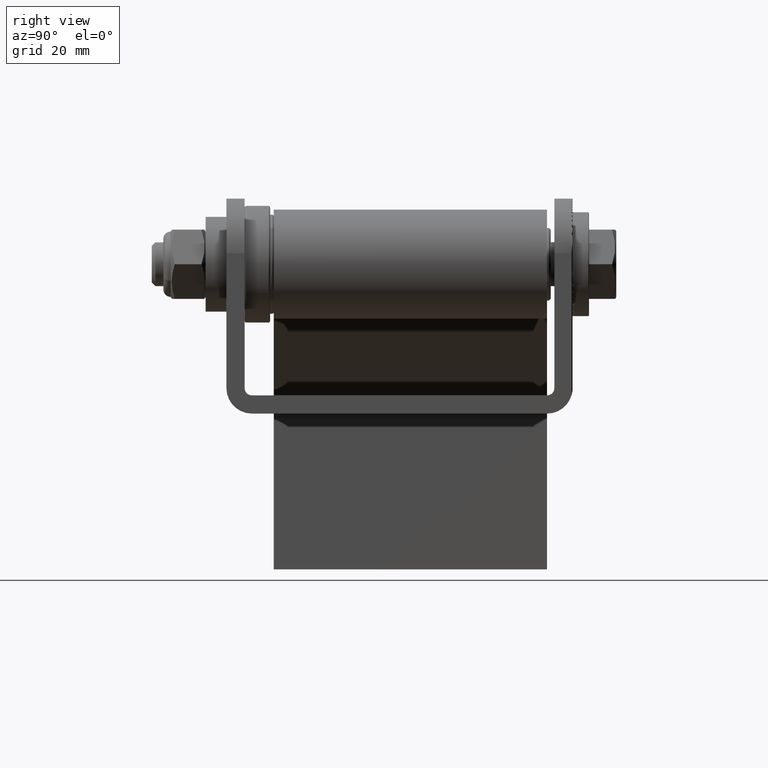
[diagram: clean part render]
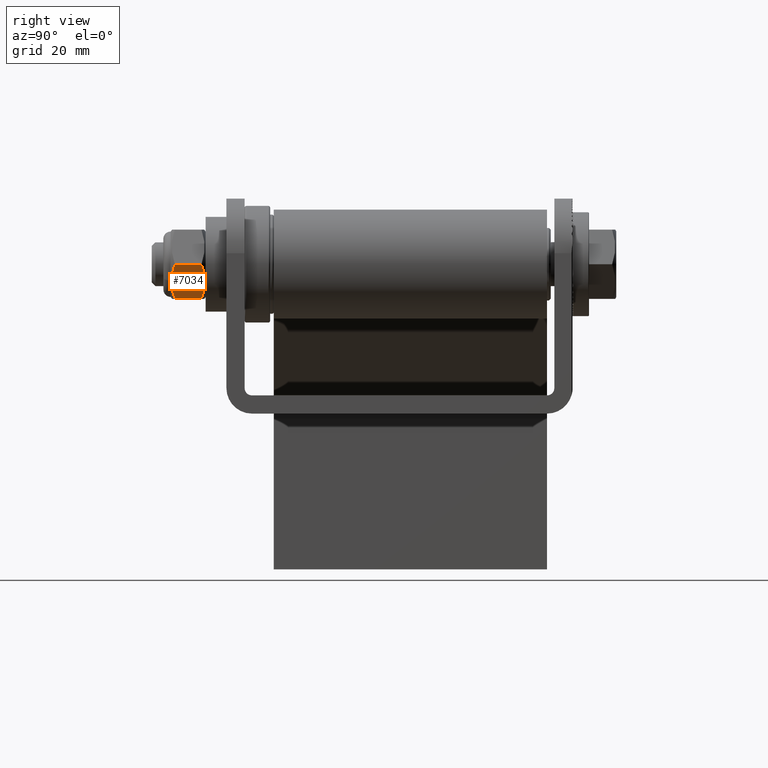
[diagram: same view with one face highlighted and labeled with its STEP entity id]
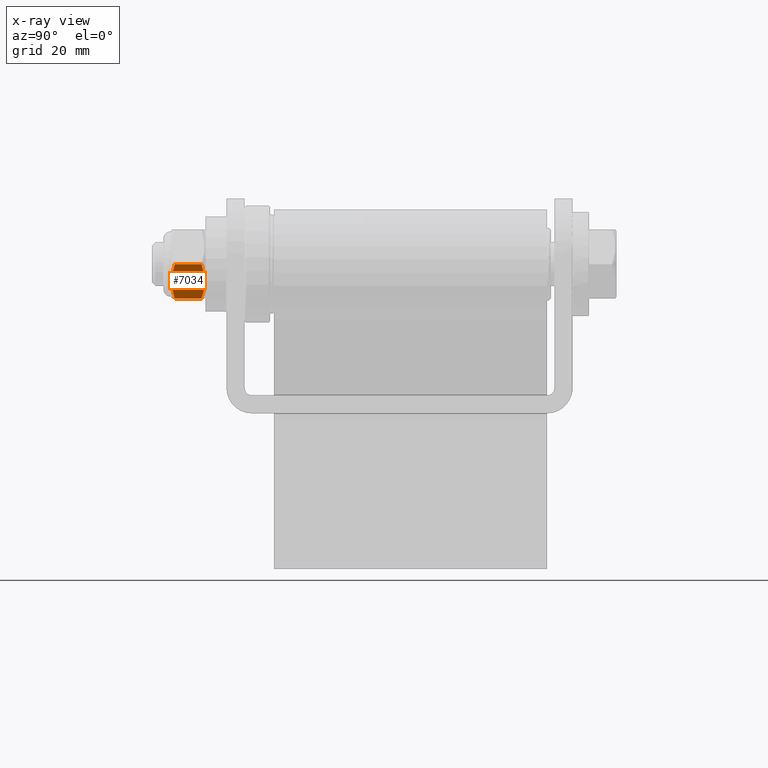
[diagram: x-ray of the same camera — body ghosted, the highlighted face saturated]
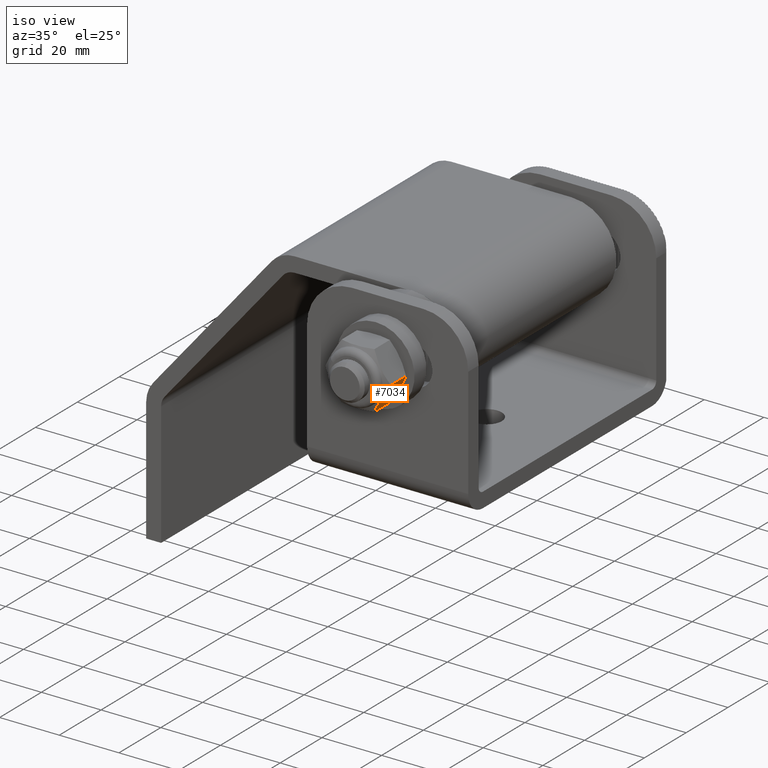
[diagram: same view with one face highlighted and labeled with its STEP entity id]
A machine part, right view. The second image highlights one B-rep face of the part: STEP entity #7034.
The next image is the same camera in x-ray: the body ghosted, the highlighted face saturated — about 0% of this face is hidden behind the body in this view.
A second angle (iso view) of the same face is appended — the face is thin or edge-on in the first view.
In plain terms, the highlighted planar face has unit normal (-0.866, -0, 0.5).
Its self-contained STEP definition (entity closure, byte-faithful):
#158 = ORIENTED_EDGE ( 'NONE', *, *, #4689, .F. ) ;
#597 = CARTESIAN_POINT ( 'NONE',  ( -5.484827557301445100, 3.662819089373314400, -9.500000000000000000 ) ) ;
#1432 = VERTEX_POINT ( 'NONE', #24609 ) ;
#1481 = VERTEX_POINT ( 'NONE', #5848 ) ;
#1554 = DIRECTION ( 'NONE',  ( 1.581383788144378200E-016, -0.0000000000000000000, 1.000000000000000000 ) ) ;
#2100 = VERTEX_POINT ( 'NONE', #6372 ) ;
#2491 = CARTESIAN_POINT ( 'NONE',  ( 0.9279667863832378200, -4.511324865405190300, -9.500000000000001800 ) ) ;
#2495 = ORIENTED_EDGE ( 'NONE', *, *, #14276, .T. ) ;
#3019 = CARTESIAN_POINT ( 'NONE',  ( -5.484827557301445100, 3.662819089373314400, -9.500000000000000000 ) ) ;
#3327 = CARTESIAN_POINT ( 'NONE',  ( -4.592258497430444600, -3.920481582866767800, -9.500000000000001800 ) ) ;
#3615 = CARTESIAN_POINT ( 'NONE',  ( 5.484827557301444200, 4.799999999999999800, -9.500000000000001800 ) ) ;
#3801 = EDGE_CURVE ( 'NONE', #22328, #24334, #20500, .T. ) ;
#4550 = CARTESIAN_POINT ( 'NONE',  ( 5.484827557301444200, 3.662819089373314400, -9.500000000000001800 ) ) ;
#4607 = ORIENTED_EDGE ( 'NONE', *, *, #7436, .T. ) ;
#4619 = FACE_OUTER_BOUND ( 'NONE', #16189, .T. ) ;
#4689 = EDGE_CURVE ( 'NONE', #22328, #1432, #22930, .T. ) ;
#5848 = CARTESIAN_POINT ( 'NONE',  ( 5.484827557301444200, 3.662819089373314400, -9.500000000000001800 ) ) ;
#6311 = CARTESIAN_POINT ( 'NONE',  ( 4.597850107038707000, 3.918867424210470900, -9.500000000000001800 ) ) ;
#6372 = CARTESIAN_POINT ( 'NONE',  ( 5.484827557301444200, -3.662819089373314400, -9.500000000000001800 ) ) ;
#6588 = CARTESIAN_POINT ( 'NONE',  ( -3.922610851211481200E-025, 4.511324865405190300, -9.500000000000001800 ) ) ;
#6985 = CARTESIAN_POINT ( 'NONE',  ( -3.922610851211481200E-025, 4.511324865405190300, -9.500000000000001800 ) ) ;
#7021 = ORIENTED_EDGE ( 'NONE', *, *, #13814, .T. ) ;
#7034 = ADVANCED_FACE ( 'NONE', ( #4619 ), #12312, .F. ) ;
#7378 = CARTESIAN_POINT ( 'NONE',  ( -1.848187441465208200, -4.431580333167910400, -9.500000000000001800 ) ) ;
#7436 = EDGE_CURVE ( 'NONE', #1481, #2100, #13469, .T. ) ;
#7720 = B_SPLINE_CURVE_WITH_KNOTS ( 'NONE', 3,
 ( #23215, #25498, #8660, #17093, #2491, #17004 ),
 .UNSPECIFIED., .F., .F.,
 ( 4, 2, 4 ),
 ( 0.02510344865626489000, 0.02788245588932965900, 0.03066146312239442800 ),
 .UNSPECIFIED. ) ;
#8660 = CARTESIAN_POINT ( 'NONE',  ( 3.699441997676888000, -4.132028731169365100, -9.500000000000001800 ) ) ;
#8689 = CARTESIAN_POINT ( 'NONE',  ( 1.868239752105089100, 4.429337394161245300, -9.500000000000001800 ) ) ;
#9766 = CARTESIAN_POINT ( 'NONE',  ( -3.678782492749258300, -4.136373375985143300, -9.500000000000000000 ) ) ;
#11039 = VERTEX_POINT ( 'NONE', #20876 ) ;
#11784 = CARTESIAN_POINT ( 'NONE',  ( -0.9273492696439452600, -4.511324865405190300, -9.500000000000001800 ) ) ;
#12157 = VECTOR ( 'NONE', #17955, 1000.000000000000000 ) ;
#12312 = PLANE ( 'NONE',  #24165 ) ;
#13393 = CARTESIAN_POINT ( 'NONE',  ( -3.678782492749258700, 4.136373375985143300, -9.500000000000001800 ) ) ;
#13469 = LINE ( 'NONE', #3615, #25255 ) ;
#13556 = CARTESIAN_POINT ( 'NONE',  ( -5.484827557301445100, 4.799999999999999800, -9.500000000000000000 ) ) ;
#13814 = EDGE_CURVE ( 'NONE', #24334, #1481, #19460, .T. ) ;
#13879 = CARTESIAN_POINT ( 'NONE',  ( -5.484827557301445100, -3.662819089373314400, -9.500000000000000000 ) ) ;
#14276 = EDGE_CURVE ( 'NONE', #2100, #11039, #7720, .T. ) ;
#14398 = DIRECTION ( 'NONE',  ( 1.000000000000000000, 0.0000000000000000000, -1.581383788144378200E-016 ) ) ;
#14562 = CARTESIAN_POINT ( 'NONE',  ( -3.922610851211481200E-025, 4.511324865405190300, -9.500000000000001800 ) ) ;
#14865 = CARTESIAN_POINT ( 'NONE',  ( -0.9273492696439453700, 4.511324865405190300, -9.500000000000001800 ) ) ;
#15891 = CARTESIAN_POINT ( 'NONE',  ( -3.922610851211481200E-025, -4.511324865405190300, -9.500000000000001800 ) ) ;
#16189 = EDGE_LOOP ( 'NONE', ( #4607, #2495, #23655, #158, #19537, #7021 ) ) ;
#16835 = B_SPLINE_CURVE_WITH_KNOTS ( 'NONE', 3,
 ( #15891, #11784, #7378, #9766, #3327, #13879 ),
 .UNSPECIFIED., .F., .F.,
 ( 4, 2, 4 ),
 ( 0.03066146312239442800, 0.03343862106137861200, 0.03621577900036279700 ),
 .UNSPECIFIED. ) ;
#17004 = CARTESIAN_POINT ( 'NONE',  ( -3.922610851211481200E-025, -4.511324865405190300, -9.500000000000001800 ) ) ;
#17093 = CARTESIAN_POINT ( 'NONE',  ( 1.868239752105089700, -4.429337394161246200, -9.500000000000000000 ) ) ;
#17606 = CARTESIAN_POINT ( 'NONE',  ( -4.592258497430444600, 3.920481582866766100, -9.499999999999998200 ) ) ;
#17955 = DIRECTION ( 'NONE',  ( -0.0000000000000000000, -1.000000000000000000, -0.0000000000000000000 ) ) ;
#19460 = B_SPLINE_CURVE_WITH_KNOTS ( 'NONE', 3,
 ( #6588, #25070, #8689, #23335, #6311, #4550 ),
 .UNSPECIFIED., .F., .F.,
 ( 4, 2, 4 ),
 ( 0.01550990649068762100, 0.01828695993828467800, 0.02106401338588173600 ),
 .UNSPECIFIED. ) ;
#19537 = ORIENTED_EDGE ( 'NONE', *, *, #3801, .T. ) ;
#20500 = B_SPLINE_CURVE_WITH_KNOTS ( 'NONE', 3,
 ( #3019, #17606, #13393, #23719, #14865, #6985 ),
 .UNSPECIFIED., .F., .F.,
 ( 4, 2, 4 ),
 ( 0.009959495583356367200, 0.01273470103702199400, 0.01550990649068762100 ),
 .UNSPECIFIED. ) ;
#20876 = CARTESIAN_POINT ( 'NONE',  ( -3.922610851211481200E-025, -4.511324865405190300, -9.500000000000001800 ) ) ;
#22328 = VERTEX_POINT ( 'NONE', #597 ) ;
#22930 = LINE ( 'NONE', #13556, #12157 ) ;
#23215 = CARTESIAN_POINT ( 'NONE',  ( 5.484827557301444200, -3.662819089373314400, -9.500000000000001800 ) ) ;
#23335 = CARTESIAN_POINT ( 'NONE',  ( 3.699441997676888000, 4.132028731169365100, -9.500000000000000000 ) ) ;
#23655 = ORIENTED_EDGE ( 'NONE', *, *, #26761, .T. ) ;
#23719 = CARTESIAN_POINT ( 'NONE',  ( -1.848187441465209100, 4.431580333167910400, -9.500000000000000000 ) ) ;
#24165 = AXIS2_PLACEMENT_3D ( 'NONE', #26939, #1554, #14398 ) ;
#24334 = VERTEX_POINT ( 'NONE', #14562 ) ;
#24609 = CARTESIAN_POINT ( 'NONE',  ( -5.484827557301445100, -3.662819089373314400, -9.500000000000000000 ) ) ;
#25070 = CARTESIAN_POINT ( 'NONE',  ( 0.9279667863832388200, 4.511324865405191200, -9.500000000000001800 ) ) ;
#25255 = VECTOR ( 'NONE', #26609, 1000.000000000000000 ) ;
#25498 = CARTESIAN_POINT ( 'NONE',  ( 4.597850107038705200, -3.918867424210470000, -9.500000000000001800 ) ) ;
#26609 = DIRECTION ( 'NONE',  ( -0.0000000000000000000, -1.000000000000000000, -0.0000000000000000000 ) ) ;
#26761 = EDGE_CURVE ( 'NONE', #11039, #1432, #16835, .T. ) ;
#26939 = CARTESIAN_POINT ( 'NONE',  ( 5.484827557301444200, 4.799999999999999800, -9.500000000000001800 ) ) ;